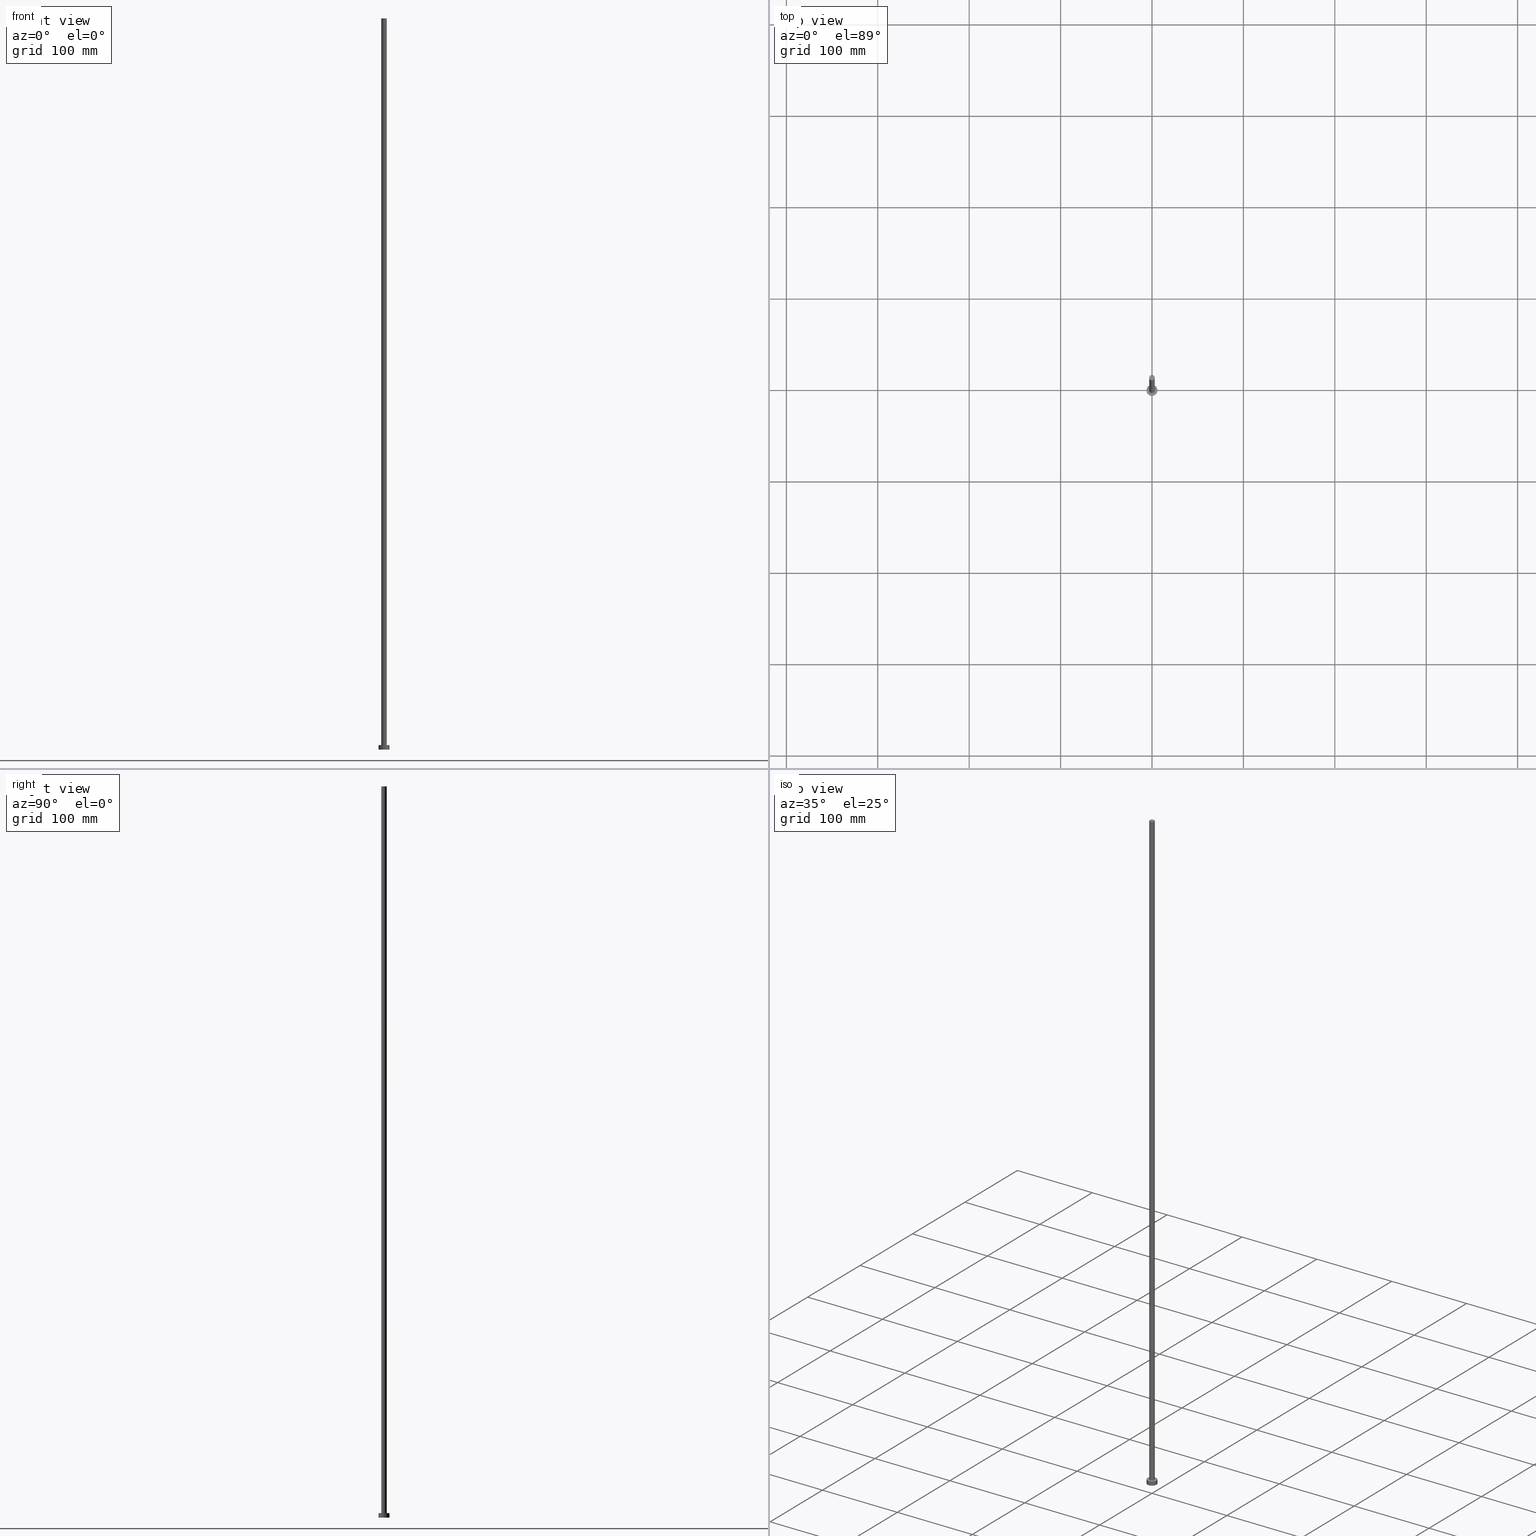
[diagram: canonical four-view strip — front | top / right | iso, engineering-drawing reading convention]
A machine part, canonical four-view strip (front | top / right | iso — engineering-drawing reading convention). The complete STEP part file that produces these views, byte-faithful:
ISO-10303-21;
HEADER;
FILE_DESCRIPTION (( 'STEP AP203' ),
    '1' );
FILE_NAME ('b80d.STEP',
    '2026-02-06T12:40:10',
    ( '' ),
    ( '' ),
    'SwSTEP 2.0',
    'SolidWorks 2019',
    '' );
FILE_SCHEMA (( 'CONFIG_CONTROL_DESIGN' ));
ENDSEC;

DATA;
#1 = DIRECTION ( 'NONE',  ( 1.000000000000000000, 0.000000000000000000, 0.000000000000000000 ) ) ;
#2 = DIRECTION ( 'NONE',  ( 1.000000000000000000, 0.000000000000000000, 0.000000000000000000 ) ) ;
#3 = EDGE_CURVE ( 'NONE', #199, #159, #239, .T. ) ;
#4 = PERSON ( 'NEUR�EN�', 'NEUR�EN�', 'NEUR�EN�', ('NEUR�EN�'), ('NEUR�EN�'), ('NEUR�EN�') ) ;
#5 = PLANE ( 'NONE',  #7 ) ;
#6 = AXIS2_PLACEMENT_3D ( 'NONE', #241, #111, #92 ) ;
#7 = AXIS2_PLACEMENT_3D ( 'NONE', #203, #59, #85 ) ;
#8 = ORIENTED_EDGE ( 'NONE', *, *, #162, .F. ) ;
#9 = LINE ( 'NONE', #49, #182 ) ;
#10 = CIRCLE ( 'NONE', #39, 6.000000000000000888 ) ;
#11 = CARTESIAN_POINT ( 'NONE',  ( 0.000000000000000000, 0.000000000000000000, 0.000000000000000000 ) ) ;
#12 = CC_DESIGN_PERSON_AND_ORGANIZATION_ASSIGNMENT ( #175, #75, ( #228 ) ) ;
#13 = DIRECTION ( 'NONE',  ( 0.000000000000000000, 0.000000000000000000, 1.000000000000000000 ) ) ;
#14 = AXIS2_PLACEMENT_3D ( 'NONE', #11, #110, #165 ) ;
#15 = PERSON_AND_ORGANIZATION ( #4, #211 ) ;
#16 = EDGE_CURVE ( 'NONE', #255, #240, #185, .T. ) ;
#17 = DATE_TIME_ROLE ( 'classification_date' ) ;
#18 = PERSON_AND_ORGANIZATION_ROLE ( 'creator' ) ;
#19 = APPROVAL_DATE_TIME ( #195, #139 ) ;
#20 = EDGE_LOOP ( 'NONE', ( #8, #157, #180, #26 ) ) ;
#21 = ORIENTED_EDGE ( 'NONE', *, *, #184, .T. ) ;
#22 = CARTESIAN_POINT ( 'NONE',  ( 0.000000000000000000, 0.000000000000000000, 5.000000000000000000 ) ) ;
#23 = DIRECTION ( 'NONE',  ( 1.000000000000000000, 0.000000000000000000, -0.000000000000000000 ) ) ;
#24 = ORIENTED_EDGE ( 'NONE', *, *, #46, .T. ) ;
#25 = LOCAL_TIME ( 13, 40, 10.00000000000000000, #231 ) ;
#26 = ORIENTED_EDGE ( 'NONE', *, *, #184, .F. ) ;
#27 = DIRECTION ( 'NONE',  ( 1.000000000000000000, 0.000000000000000000, 0.000000000000000000 ) ) ;
#28 = DIRECTION ( 'NONE',  ( 0.000000000000000000, 0.000000000000000000, 1.000000000000000000 ) ) ;
#29 = LOCAL_TIME ( 13, 40, 10.00000000000000000, #98 ) ;
#30 = CYLINDRICAL_SURFACE ( 'NONE', #227, 3.000000000000000444 ) ;
#31 = EDGE_CURVE ( 'NONE', #236, #234, #101, .T. ) ;
#32 = DIRECTION ( 'NONE',  ( -0.000000000000000000, -0.000000000000000000, -1.000000000000000000 ) ) ;
#33 = CIRCLE ( 'NONE', #64, 3.000000000000000444 ) ;
#34 = APPROVAL_PERSON_ORGANIZATION ( #150, #156, #97 ) ;
#35 = APPROVAL_STATUS ( 'not_yet_approved' ) ;
#36 = PRODUCT_DEFINITION ( 'NEZN�M�', '', #228, #152 ) ;
#37 = ORIENTED_EDGE ( 'NONE', *, *, #57, .F. ) ;
#38 = CYLINDRICAL_SURFACE ( 'NONE', #151, 6.000000000000000888 ) ;
#39 = AXIS2_PLACEMENT_3D ( 'NONE', #121, #201, #2 ) ;
#40 = FACE_OUTER_BOUND ( 'NONE', #160, .T. ) ;
#41 = CARTESIAN_POINT ( 'NONE',  ( 3.000000000000000444, 3.673940397442060361E-16, 800.0000000000000000 ) ) ;
#42 = ORIENTED_EDGE ( 'NONE', *, *, #162, .T. ) ;
#43 = APPROVAL_PERSON_ORGANIZATION ( #103, #139, #192 ) ;
#44 = CARTESIAN_POINT ( 'NONE',  ( 0.000000000000000000, 0.000000000000000000, 5.000000000000000000 ) ) ;
#45 = MANIFOLD_SOLID_BREP ( 'P�idat vysunut�m3', #148 ) ;
#46 = EDGE_CURVE ( 'NONE', #61, #240, #102, .T. ) ;
#47 = CARTESIAN_POINT ( 'NONE',  ( 6.000000000000000888, 7.347880794884120722E-16, 0.000000000000000000 ) ) ;
#48 = CYLINDRICAL_SURFACE ( 'NONE', #173, 3.000000000000000444 ) ;
#49 = CARTESIAN_POINT ( 'NONE',  ( -3.000000000000000444, 0.000000000000000000, 800.0000000000000000 ) ) ;
#50 = CALENDAR_DATE ( 2026, 6, 2 ) ;
#51 = APPROVAL_STATUS ( 'not_yet_approved' ) ;
#52 = ADVANCED_FACE ( 'NONE', ( #79 ), #38, .T. ) ;
#53 = ORIENTED_EDGE ( 'NONE', *, *, #16, .F. ) ;
#54 = APPROVAL_ROLE ( '' ) ;
#55 = ADVANCED_BREP_SHAPE_REPRESENTATION ( 'b80d', ( #45, #248 ), #107 ) ;
#56 = ORIENTED_EDGE ( 'NONE', *, *, #116, .F. ) ;
#57 = EDGE_CURVE ( 'NONE', #199, #236, #10, .T. ) ;
#58 = ORIENTED_EDGE ( 'NONE', *, *, #225, .T. ) ;
#59 = DIRECTION ( 'NONE',  ( 0.000000000000000000, 0.000000000000000000, 1.000000000000000000 ) ) ;
#60 = AXIS2_PLACEMENT_3D ( 'NONE', #244, #113, #109 ) ;
#61 = VERTEX_POINT ( 'NONE', #141 ) ;
#62 = EDGE_LOOP ( 'NONE', ( #58, #42 ) ) ;
#63 = CARTESIAN_POINT ( 'NONE',  ( 3.000000000000000444, 3.673940397442060361E-16, 5.000000000000000000 ) ) ;
#64 = AXIS2_PLACEMENT_3D ( 'NONE', #224, #186, #27 ) ;
#65 = VECTOR ( 'NONE', #205, 1000.000000000000000 ) ;
#66 = FACE_OUTER_BOUND ( 'NONE', #106, .T. ) ;
#67 = APPROVAL ( #51, 'NEUR�EN�' ) ;
#68 = DIRECTION ( 'NONE',  ( 1.000000000000000000, 0.000000000000000000, 0.000000000000000000 ) ) ;
#69 = CARTESIAN_POINT ( 'NONE',  ( 3.000000000000000444, 3.673940397442060361E-16, 800.0000000000000000 ) ) ;
#70 = FACE_OUTER_BOUND ( 'NONE', #20, .T. ) ;
#71 = CALENDAR_DATE ( 2026, 6, 2 ) ;
#72 = ORIENTED_EDGE ( 'NONE', *, *, #142, .F. ) ;
#73 = SECURITY_CLASSIFICATION_LEVEL ( 'unclassified' ) ;
#74 = PERSON_AND_ORGANIZATION ( #4, #211 ) ;
#75 = PERSON_AND_ORGANIZATION_ROLE ( 'design_supplier' ) ;
#76 = APPLICATION_PROTOCOL_DEFINITION ( 'international standard', 'config_control_design', 1994, #95 ) ;
#77 = ORIENTED_EDGE ( 'NONE', *, *, #46, .F. ) ;
#78 = CC_DESIGN_APPROVAL ( #67, ( #36 ) ) ;
#79 = FACE_OUTER_BOUND ( 'NONE', #194, .T. ) ;
#80 = FACE_OUTER_BOUND ( 'NONE', #117, .T. ) ;
#81 = ORIENTED_EDGE ( 'NONE', *, *, #127, .T. ) ;
#82 = CIRCLE ( 'NONE', #6, 3.000000000000000444 ) ;
#83 = VECTOR ( 'NONE', #219, 1000.000000000000000 ) ;
#84 = ADVANCED_FACE ( 'NONE', ( #80 ), #5, .F. ) ;
#85 = DIRECTION ( 'NONE',  ( 1.000000000000000000, 0.000000000000000000, -0.000000000000000000 ) ) ;
#86 = DIRECTION ( 'NONE',  ( 1.000000000000000000, 0.000000000000000000, 0.000000000000000000 ) ) ;
#87 = ADVANCED_FACE ( 'NONE', ( #217, #40 ), #161, .T. ) ;
#88 = CC_DESIGN_SECURITY_CLASSIFICATION ( #237, ( #228 ) ) ;
#89 = AXIS2_PLACEMENT_3D ( 'NONE', #108, #215, #1 ) ;
#90 = DIRECTION ( 'NONE',  ( 0.000000000000000000, 0.000000000000000000, 1.000000000000000000 ) ) ;
#91 = CARTESIAN_POINT ( 'NONE',  ( 0.000000000000000000, 0.000000000000000000, 800.0000000000000000 ) ) ;
#92 = DIRECTION ( 'NONE',  ( 1.000000000000000000, 0.000000000000000000, 0.000000000000000000 ) ) ;
#93 = LOCAL_TIME ( 13, 40, 10.00000000000000000, #210 ) ;
#94 = CIRCLE ( 'NONE', #216, 6.000000000000000888 ) ;
#95 = APPLICATION_CONTEXT ( 'configuration controlled 3d designs of mechanical parts and assemblies' ) ;
#96 = APPLICATION_PROTOCOL_DEFINITION ( 'international standard', 'config_control_design', 1994, #218 ) ;
#97 = APPROVAL_ROLE ( '' ) ;
#98 = COORDINATED_UNIVERSAL_TIME_OFFSET ( 1, 0, .AHEAD. ) ;
#99 = CALENDAR_DATE ( 2026, 6, 2 ) ;
#100 = PERSON_AND_ORGANIZATION_ROLE ( 'creator' ) ;
#101 = LINE ( 'NONE', #179, #65 ) ;
#102 = CIRCLE ( 'NONE', #89, 3.000000000000000444 ) ;
#103 = PERSON_AND_ORGANIZATION ( #4, #211 ) ;
#104 = ORIENTED_EDGE ( 'NONE', *, *, #31, .T. ) ;
#105 = ORIENTED_EDGE ( 'NONE', *, *, #127, .F. ) ;
#106 = EDGE_LOOP ( 'NONE', ( #232, #104, #137, #181 ) ) ;
#107 =( GEOMETRIC_REPRESENTATION_CONTEXT ( 3 ) GLOBAL_UNCERTAINTY_ASSIGNED_CONTEXT ( ( #134 ) ) GLOBAL_UNIT_ASSIGNED_CONTEXT ( ( #245, #143, #123 ) ) REPRESENTATION_CONTEXT ( 'NONE', 'WORKASPACE' ) );
#108 = CARTESIAN_POINT ( 'NONE',  ( 0.000000000000000000, 0.000000000000000000, 5.000000000000000000 ) ) ;
#109 = DIRECTION ( 'NONE',  ( -1.000000000000000000, 0.000000000000000000, 0.000000000000000000 ) ) ;
#110 = DIRECTION ( 'NONE',  ( 0.000000000000000000, 0.000000000000000000, 1.000000000000000000 ) ) ;
#111 = DIRECTION ( 'NONE',  ( 0.000000000000000000, 0.000000000000000000, 1.000000000000000000 ) ) ;
#112 = DIRECTION ( 'NONE',  ( 1.000000000000000000, 0.000000000000000000, 0.000000000000000000 ) ) ;
#113 = DIRECTION ( 'NONE',  ( -0.000000000000000000, -0.000000000000000000, -1.000000000000000000 ) ) ;
#114 = AXIS2_PLACEMENT_3D ( 'NONE', #44, #28, #86 ) ;
#115 = CALENDAR_DATE ( 2026, 6, 2 ) ;
#116 = EDGE_CURVE ( 'NONE', #234, #159, #94, .T. ) ;
#117 = EDGE_LOOP ( 'NONE', ( #105, #56 ) ) ;
#118 = CARTESIAN_POINT ( 'NONE',  ( -6.000000000000000888, 0.000000000000000000, 5.000000000000000000 ) ) ;
#119 = DIRECTION ( 'NONE',  ( -1.000000000000000000, 0.000000000000000000, 0.000000000000000000 ) ) ;
#120 = ORIENTED_EDGE ( 'NONE', *, *, #57, .T. ) ;
#121 = CARTESIAN_POINT ( 'NONE',  ( 0.000000000000000000, 0.000000000000000000, 5.000000000000000000 ) ) ;
#122 = EDGE_LOOP ( 'NONE', ( #53, #214, #21, #24 ) ) ;
#123 =( NAMED_UNIT ( * ) SI_UNIT ( $, .STERADIAN. ) SOLID_ANGLE_UNIT ( ) );
#124 = ADVANCED_FACE ( 'NONE', ( #70 ), #48, .T. ) ;
#125 = FACE_OUTER_BOUND ( 'NONE', #62, .T. ) ;
#126 = CARTESIAN_POINT ( 'NONE',  ( 0.000000000000000000, 0.000000000000000000, 800.0000000000000000 ) ) ;
#127 = EDGE_CURVE ( 'NONE', #159, #234, #233, .T. ) ;
#128 = DIRECTION ( 'NONE',  ( -0.000000000000000000, -0.000000000000000000, -1.000000000000000000 ) ) ;
#129 = CARTESIAN_POINT ( 'NONE',  ( 0.000000000000000000, 0.000000000000000000, 0.000000000000000000 ) ) ;
#130 = CALENDAR_DATE ( 2026, 6, 2 ) ;
#131 = PERSON_AND_ORGANIZATION_ROLE ( 'design_owner' ) ;
#132 = PRODUCT_RELATED_PRODUCT_CATEGORY ( 'detail', '', ( #168 ) ) ;
#133 = ORIENTED_EDGE ( 'NONE', *, *, #3, .T. ) ;
#134 = UNCERTAINTY_MEASURE_WITH_UNIT (LENGTH_MEASURE( 1.000000000000000082E-05 ), #245, 'distance_accuracy_value', 'NONE');
#135 = PERSON_AND_ORGANIZATION ( #4, #211 ) ;
#136 = APPROVAL_PERSON_ORGANIZATION ( #155, #67, #54 ) ;
#137 = ORIENTED_EDGE ( 'NONE', *, *, #116, .T. ) ;
#138 = ORIENTED_EDGE ( 'NONE', *, *, #178, .T. ) ;
#139 = APPROVAL ( #250, 'NEUR�EN�' ) ;
#140 = AXIS2_PLACEMENT_3D ( 'NONE', #246, #13, #112 ) ;
#141 = CARTESIAN_POINT ( 'NONE',  ( -3.000000000000000444, 0.000000000000000000, 5.000000000000000000 ) ) ;
#142 = EDGE_CURVE ( 'NONE', #240, #61, #158, .T. ) ;
#143 =( NAMED_UNIT ( * ) PLANE_ANGLE_UNIT ( ) SI_UNIT ( $, .RADIAN. ) );
#144 = CC_DESIGN_APPROVAL ( #156, ( #237 ) ) ;
#145 = PLANE ( 'NONE',  #172 ) ;
#146 = DIRECTION ( 'NONE',  ( -1.000000000000000000, 0.000000000000000000, 0.000000000000000000 ) ) ;
#147 = CC_DESIGN_PERSON_AND_ORGANIZATION_ASSIGNMENT ( #15, #100, ( #228 ) ) ;
#148 = CLOSED_SHELL ( 'NONE', ( #124, #193, #52, #87, #84, #164, #197 ) ) ;
#149 = DIRECTION ( 'NONE',  ( -1.000000000000000000, 0.000000000000000000, 0.000000000000000000 ) ) ;
#150 = PERSON_AND_ORGANIZATION ( #4, #211 ) ;
#151 = AXIS2_PLACEMENT_3D ( 'NONE', #22, #235, #119 ) ;
#152 = DESIGN_CONTEXT ( 'detailed design', #95, 'design' ) ;
#153 = DATE_TIME_ROLE ( 'creation_date' ) ;
#154 = SHAPE_DEFINITION_REPRESENTATION ( #190, #55 ) ;
#155 = PERSON_AND_ORGANIZATION ( #4, #211 ) ;
#156 = APPROVAL ( #35, 'NEUR�EN�' ) ;
#157 = ORIENTED_EDGE ( 'NONE', *, *, #16, .T. ) ;
#158 = CIRCLE ( 'NONE', #114, 3.000000000000000444 ) ;
#159 = VERTEX_POINT ( 'NONE', #223 ) ;
#160 = EDGE_LOOP ( 'NONE', ( #120, #138 ) ) ;
#161 = PLANE ( 'NONE',  #213 ) ;
#162 = EDGE_CURVE ( 'NONE', #255, #220, #33, .T. ) ;
#163 = CARTESIAN_POINT ( 'NONE',  ( 0.000000000000000000, 0.000000000000000000, 5.000000000000000000 ) ) ;
#164 = ADVANCED_FACE ( 'NONE', ( #167 ), #30, .T. ) ;
#165 = DIRECTION ( 'NONE',  ( 1.000000000000000000, 0.000000000000000000, 0.000000000000000000 ) ) ;
#166 = DIRECTION ( 'NONE',  ( 1.000000000000000000, 0.000000000000000000, -0.000000000000000000 ) ) ;
#167 = FACE_OUTER_BOUND ( 'NONE', #122, .T. ) ;
#168 = PRODUCT ( 'b80d', 'b80d', '', ( #252 ) ) ;
#169 = CARTESIAN_POINT ( 'NONE',  ( 6.000000000000000888, 7.347880794884120722E-16, 5.000000000000000000 ) ) ;
#170 = COORDINATED_UNIVERSAL_TIME_OFFSET ( 1, 0, .AHEAD. ) ;
#171 = DIRECTION ( 'NONE',  ( 0.000000000000000000, 0.000000000000000000, 1.000000000000000000 ) ) ;
#172 = AXIS2_PLACEMENT_3D ( 'NONE', #126, #90, #166 ) ;
#173 = AXIS2_PLACEMENT_3D ( 'NONE', #221, #206, #149 ) ;
#174 = DATE_AND_TIME ( #99, #249 ) ;
#175 = PERSON_AND_ORGANIZATION ( #4, #211 ) ;
#176 = EDGE_LOOP ( 'NONE', ( #77, #72 ) ) ;
#177 = APPROVAL_DATE_TIME ( #226, #156 ) ;
#178 = EDGE_CURVE ( 'NONE', #236, #199, #242, .T. ) ;
#179 = CARTESIAN_POINT ( 'NONE',  ( 6.000000000000000888, 7.347880794884120722E-16, 5.000000000000000000 ) ) ;
#180 = ORIENTED_EDGE ( 'NONE', *, *, #142, .T. ) ;
#181 = ORIENTED_EDGE ( 'NONE', *, *, #3, .F. ) ;
#182 = VECTOR ( 'NONE', #128, 1000.000000000000000 ) ;
#183 = ORIENTED_EDGE ( 'NONE', *, *, #31, .F. ) ;
#184 = EDGE_CURVE ( 'NONE', #220, #61, #9, .T. ) ;
#185 = LINE ( 'NONE', #41, #188 ) ;
#186 = DIRECTION ( 'NONE',  ( 0.000000000000000000, 0.000000000000000000, 1.000000000000000000 ) ) ;
#187 = CC_DESIGN_DATE_AND_TIME_ASSIGNMENT ( #174, #153, ( #36 ) ) ;
#188 = VECTOR ( 'NONE', #200, 1000.000000000000000 ) ;
#189 = CARTESIAN_POINT ( 'NONE',  ( 0.000000000000000000, 0.000000000000000000, 0.000000000000000000 ) ) ;
#190 = PRODUCT_DEFINITION_SHAPE ( 'NONE', 'NONE',  #36 ) ;
#191 = CYLINDRICAL_SURFACE ( 'NONE', #60, 6.000000000000000888 ) ;
#192 = APPROVAL_ROLE ( '' ) ;
#193 = ADVANCED_FACE ( 'NONE', ( #66 ), #191, .T. ) ;
#194 = EDGE_LOOP ( 'NONE', ( #183, #37, #133, #81 ) ) ;
#195 = DATE_AND_TIME ( #50, #29 ) ;
#196 = APPROVAL_DATE_TIME ( #209, #67 ) ;
#197 = ADVANCED_FACE ( 'NONE', ( #125 ), #145, .T. ) ;
#198 = CC_DESIGN_APPROVAL ( #139, ( #228 ) ) ;
#199 = VERTEX_POINT ( 'NONE', #208 ) ;
#200 = DIRECTION ( 'NONE',  ( -0.000000000000000000, -0.000000000000000000, -1.000000000000000000 ) ) ;
#201 = DIRECTION ( 'NONE',  ( 0.000000000000000000, 0.000000000000000000, 1.000000000000000000 ) ) ;
#202 = DIRECTION ( 'NONE',  ( 0.000000000000000000, 0.000000000000000000, 1.000000000000000000 ) ) ;
#203 = CARTESIAN_POINT ( 'NONE',  ( 0.000000000000000000, 0.000000000000000000, 0.000000000000000000 ) ) ;
#204 = CC_DESIGN_DATE_AND_TIME_ASSIGNMENT ( #251, #17, ( #237 ) ) ;
#205 = DIRECTION ( 'NONE',  ( -0.000000000000000000, -0.000000000000000000, -1.000000000000000000 ) ) ;
#206 = DIRECTION ( 'NONE',  ( -0.000000000000000000, -0.000000000000000000, -1.000000000000000000 ) ) ;
#207 = DIRECTION ( 'NONE',  ( 0.000000000000000000, 0.000000000000000000, 1.000000000000000000 ) ) ;
#208 = CARTESIAN_POINT ( 'NONE',  ( -6.000000000000000888, 0.000000000000000000, 5.000000000000000000 ) ) ;
#209 = DATE_AND_TIME ( #130, #25 ) ;
#210 = COORDINATED_UNIVERSAL_TIME_OFFSET ( 1, 0, .AHEAD. ) ;
#211 = ORGANIZATION ( 'NEUR�EN�', 'NEUR�EN�', '' ) ;
#212 = PERSON_AND_ORGANIZATION_ROLE ( 'classification_officer' ) ;
#213 = AXIS2_PLACEMENT_3D ( 'NONE', #163, #202, #23 ) ;
#214 = ORIENTED_EDGE ( 'NONE', *, *, #225, .F. ) ;
#215 = DIRECTION ( 'NONE',  ( 0.000000000000000000, 0.000000000000000000, 1.000000000000000000 ) ) ;
#216 = AXIS2_PLACEMENT_3D ( 'NONE', #189, #207, #68 ) ;
#217 = FACE_BOUND ( 'NONE', #176, .T. ) ;
#218 = APPLICATION_CONTEXT ( 'configuration controlled 3d designs of mechanical parts and assemblies' ) ;
#219 = DIRECTION ( 'NONE',  ( -0.000000000000000000, -0.000000000000000000, -1.000000000000000000 ) ) ;
#220 = VERTEX_POINT ( 'NONE', #222 ) ;
#221 = CARTESIAN_POINT ( 'NONE',  ( 0.000000000000000000, 0.000000000000000000, 800.0000000000000000 ) ) ;
#222 = CARTESIAN_POINT ( 'NONE',  ( -3.000000000000000444, 0.000000000000000000, 800.0000000000000000 ) ) ;
#223 = CARTESIAN_POINT ( 'NONE',  ( -6.000000000000000888, 0.000000000000000000, 0.000000000000000000 ) ) ;
#224 = CARTESIAN_POINT ( 'NONE',  ( 0.000000000000000000, 0.000000000000000000, 800.0000000000000000 ) ) ;
#225 = EDGE_CURVE ( 'NONE', #220, #255, #82, .T. ) ;
#226 = DATE_AND_TIME ( #71, #243 ) ;
#227 = AXIS2_PLACEMENT_3D ( 'NONE', #91, #32, #146 ) ;
#228 = PRODUCT_DEFINITION_FORMATION_WITH_SPECIFIED_SOURCE ( 'LIBOVOLN�', '', #168, .NOT_KNOWN. ) ;
#229 = CC_DESIGN_PERSON_AND_ORGANIZATION_ASSIGNMENT ( #74, #18, ( #36 ) ) ;
#230 = PERSON_AND_ORGANIZATION ( #4, #211 ) ;
#231 = COORDINATED_UNIVERSAL_TIME_OFFSET ( 1, 0, .AHEAD. ) ;
#232 = ORIENTED_EDGE ( 'NONE', *, *, #178, .F. ) ;
#233 = CIRCLE ( 'NONE', #14, 6.000000000000000888 ) ;
#234 = VERTEX_POINT ( 'NONE', #47 ) ;
#235 = DIRECTION ( 'NONE',  ( -0.000000000000000000, -0.000000000000000000, -1.000000000000000000 ) ) ;
#236 = VERTEX_POINT ( 'NONE', #169 ) ;
#237 = SECURITY_CLASSIFICATION ( '', '', #73 ) ;
#238 = CC_DESIGN_PERSON_AND_ORGANIZATION_ASSIGNMENT ( #230, #131, ( #168 ) ) ;
#239 = LINE ( 'NONE', #118, #83 ) ;
#240 = VERTEX_POINT ( 'NONE', #63 ) ;
#241 = CARTESIAN_POINT ( 'NONE',  ( 0.000000000000000000, 0.000000000000000000, 800.0000000000000000 ) ) ;
#242 = CIRCLE ( 'NONE', #140, 6.000000000000000888 ) ;
#243 = LOCAL_TIME ( 13, 40, 10.00000000000000000, #170 ) ;
#244 = CARTESIAN_POINT ( 'NONE',  ( 0.000000000000000000, 0.000000000000000000, 5.000000000000000000 ) ) ;
#245 =( LENGTH_UNIT ( ) NAMED_UNIT ( * ) SI_UNIT ( .MILLI., .METRE. ) );
#246 = CARTESIAN_POINT ( 'NONE',  ( 0.000000000000000000, 0.000000000000000000, 5.000000000000000000 ) ) ;
#247 = CC_DESIGN_PERSON_AND_ORGANIZATION_ASSIGNMENT ( #135, #212, ( #237 ) ) ;
#248 = AXIS2_PLACEMENT_3D ( 'NONE', #129, #171, #254 ) ;
#249 = LOCAL_TIME ( 13, 40, 10.00000000000000000, #253 ) ;
#250 = APPROVAL_STATUS ( 'not_yet_approved' ) ;
#251 = DATE_AND_TIME ( #115, #93 ) ;
#252 = MECHANICAL_CONTEXT ( 'NONE', #218, 'mechanical' ) ;
#253 = COORDINATED_UNIVERSAL_TIME_OFFSET ( 1, 0, .AHEAD. ) ;
#254 = DIRECTION ( 'NONE',  ( 1.000000000000000000, 0.000000000000000000, 0.000000000000000000 ) ) ;
#255 = VERTEX_POINT ( 'NONE', #69 ) ;
ENDSEC;
END-ISO-10303-21;
